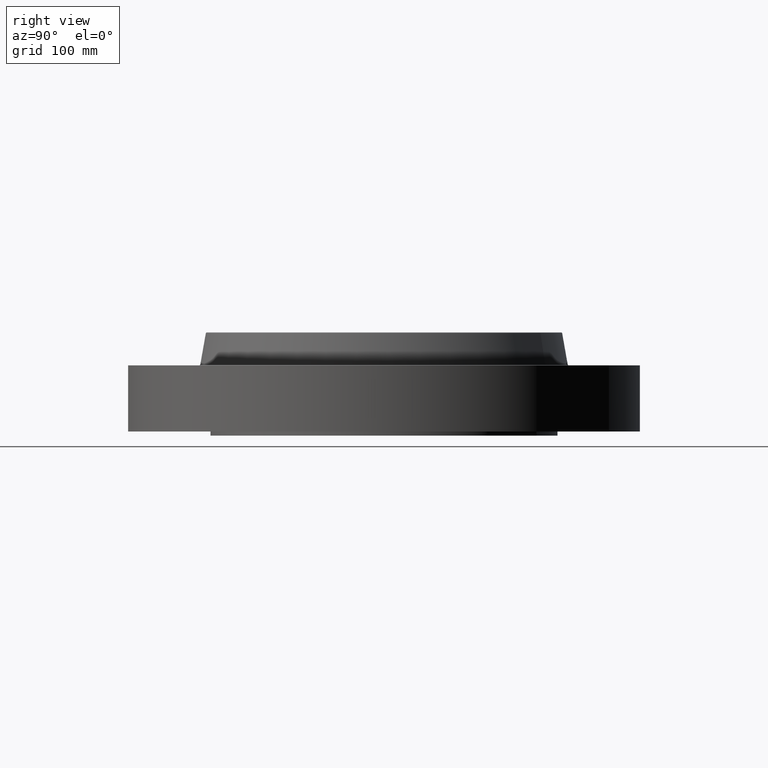
[diagram: clean part render]
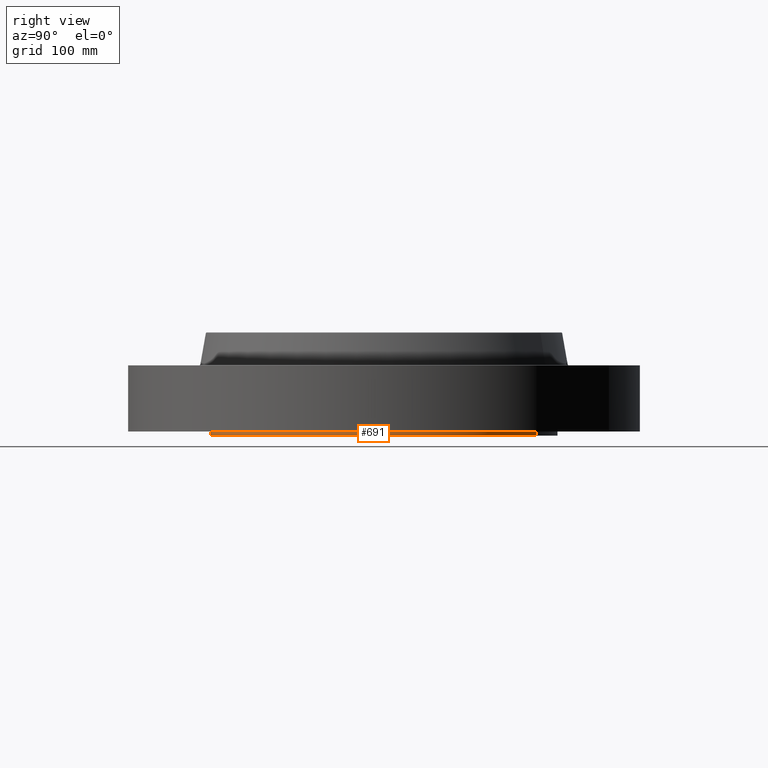
[diagram: same view with one face highlighted and labeled with its STEP entity id]
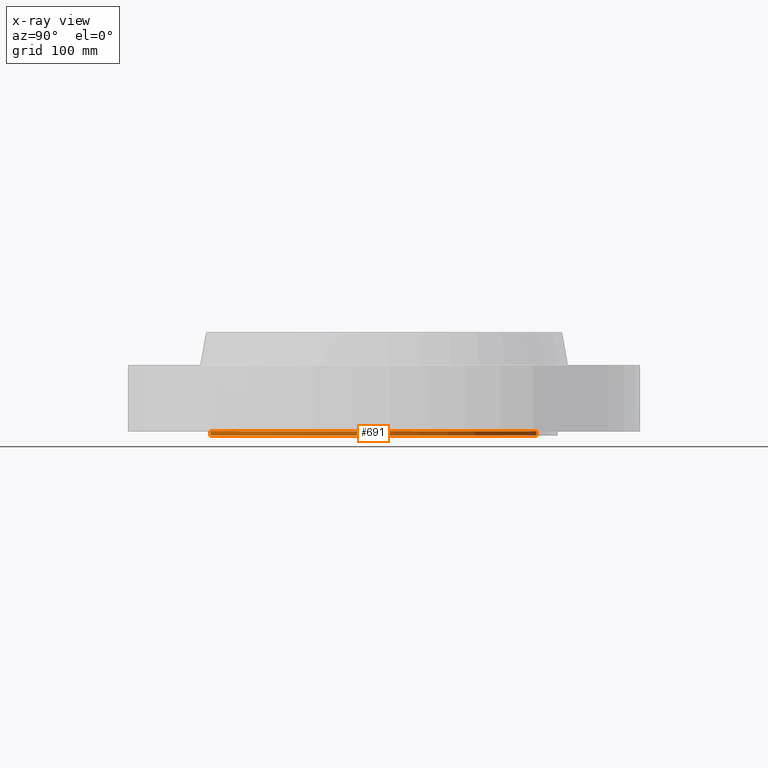
[diagram: x-ray of the same camera — body ghosted, the highlighted face saturated]
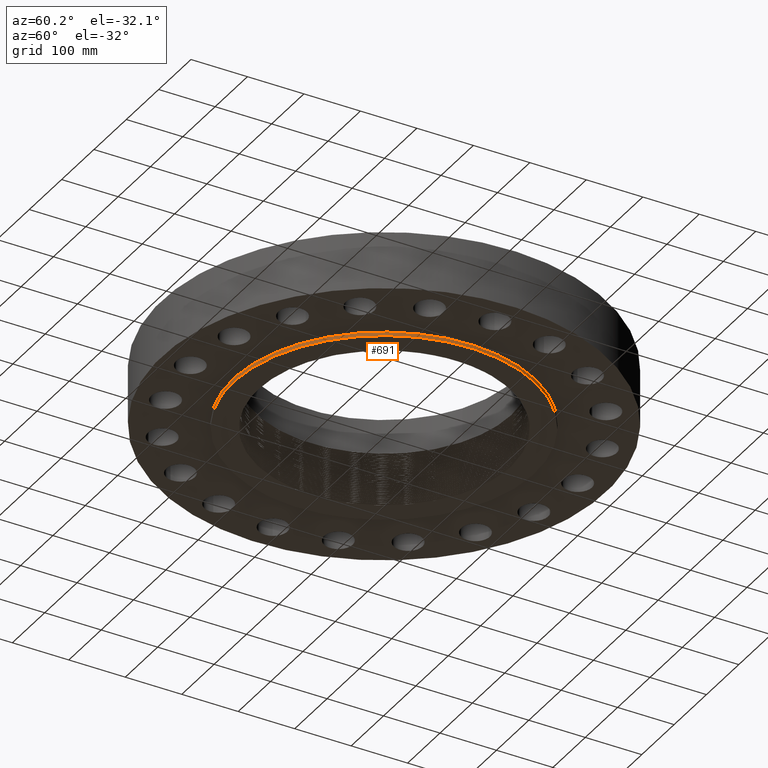
[diagram: same view with one face highlighted and labeled with its STEP entity id]
A machine part, right view. The second image highlights one B-rep face of the part: STEP entity #691.
The next image is the same camera in x-ray: the body ghosted, the highlighted face saturated — about 0% of this face is hidden behind the body in this view.
A second angle (auxiliary view) of the same face is appended — the face is thin or edge-on in the first view.
In plain terms, the highlighted cylindrical surface (partial cylindrical patch) has radius 266.7 mm, axis along (0, 0, -1).
Its self-contained STEP definition (entity closure, byte-faithful):
#199=AXIS2_PLACEMENT_3D('Circle Axis2P3D',#197,#198,$) ;
#652=AXIS2_PLACEMENT_3D('Cylinder Axis2P3D',#649,#650,#651) ;
#682=AXIS2_PLACEMENT_3D('Circle Axis2P3D',#680,#681,$) ;
#197=CARTESIAN_POINT('Axis2P3D Location',(0.,0.,-0.250000000001)) ;
#201=CARTESIAN_POINT('Vertex',(5.03396815536,9.21461689989,-0.250000000001)) ;
#203=CARTESIAN_POINT('Vertex',(-5.03396815536,-9.21461689989,-0.250000000001)) ;
#649=CARTESIAN_POINT('Axis2P3D Location',(0.,0.,2.87500000001)) ;
#654=CARTESIAN_POINT('Line Origine',(-5.03396815536,-9.21461689989,-0.125)) ;
#658=CARTESIAN_POINT('Vertex',(-5.03396815536,-9.21461689989,1.1189649382E-015)) ;
#665=CARTESIAN_POINT('Vertex',(5.03396815536,9.21461689989,1.1189649382E-015)) ;
#668=CARTESIAN_POINT('Line Origine',(5.03396815536,9.21461689989,-0.125)) ;
#680=CARTESIAN_POINT('Axis2P3D Location',(0.,0.,1.1189649382E-015)) ;
#198=DIRECTION('Axis2P3D Direction',(0.,0.,-0.0393700787402)) ;
#650=DIRECTION('Axis2P3D Direction',(0.,0.,-0.0393700787402)) ;
#651=DIRECTION('Axis2P3D XDirection',(0.0188750212049,0.0345504945626,0.)) ;
#655=DIRECTION('Vector Direction',(0.,0.,-0.0393700787402)) ;
#669=DIRECTION('Vector Direction',(0.,0.,-0.0393700787402)) ;
#681=DIRECTION('Axis2P3D Direction',(0.,0.,-0.0393700787402)) ;
#656=VECTOR('Line Direction',#655,0.0393700787402) ;
#670=VECTOR('Line Direction',#669,0.0393700787402) ;
#686=ORIENTED_EDGE('',*,*,#205,.F.) ;
#687=ORIENTED_EDGE('',*,*,#672,.T.) ;
#688=ORIENTED_EDGE('',*,*,#684,.T.) ;
#689=ORIENTED_EDGE('',*,*,#660,.F.) ;
#691=ADVANCED_FACE('PartBody',(#690),#653,.T.) ;
#200=CIRCLE('generated circle',#199,10.5) ;
#683=CIRCLE('generated circle',#682,10.5) ;
#653=CYLINDRICAL_SURFACE('generated cylinder',#652,10.5) ;
#205=EDGE_CURVE('',#202,#204,#200,.T.) ;
#660=EDGE_CURVE('',#204,#659,#657,.F.) ;
#672=EDGE_CURVE('',#202,#666,#671,.F.) ;
#684=EDGE_CURVE('',#666,#659,#683,.T.) ;
#685=EDGE_LOOP('',(#686,#687,#688,#689)) ;
#690=FACE_OUTER_BOUND('',#685,.T.) ;
#657=LINE('Line',#654,#656) ;
#671=LINE('Line',#668,#670) ;
#202=VERTEX_POINT('',#201) ;
#204=VERTEX_POINT('',#203) ;
#659=VERTEX_POINT('',#658) ;
#666=VERTEX_POINT('',#665) ;